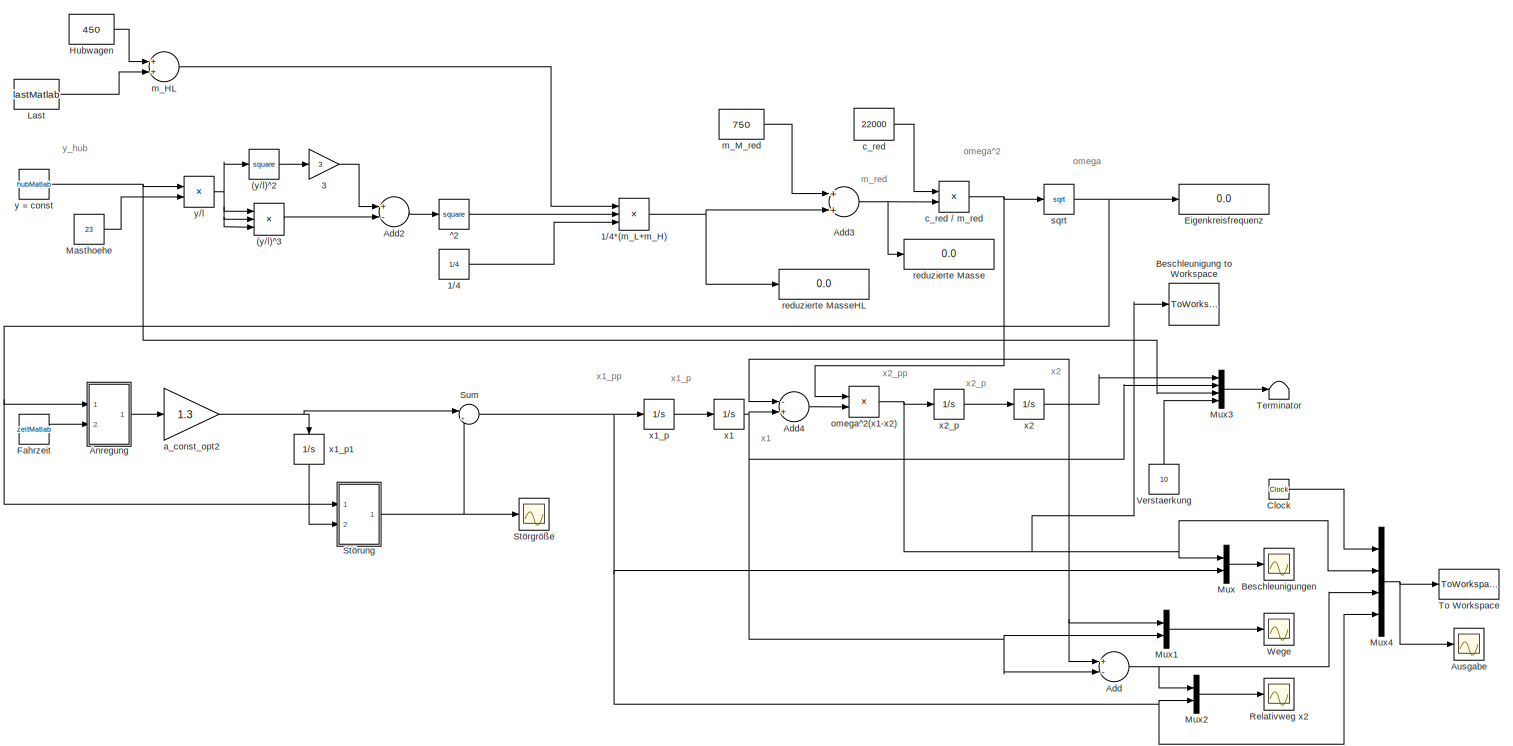
[diagram: root canvas - part 1/1, most of the canvas]
MODEL RBG_einMassenmodell_Versuchsplanung
KIND model
BLOCK [Math] (y//l)^2
  Operator = square
  Ports = [1, 1]
  SID = 1
BLOCK [Product] (y//l)^3
  InputSameDT = off
  Inputs = 3
  OutDataTypeStr = Inherit: Inherit via internal rule
  Ports = [3, 1]
  SID = 2
  SaturateOnIntegerOverflow = off
BLOCK [Constant] 1//4
  SID = 52
  Value = 1/4
BLOCK [Product] 1//4*(m_L+m_H)
  InputSameDT = off
  Inputs = 3
  OutDataTypeStr = Inherit: Inherit via internal rule
  Ports = [3, 1]
  SID = 48
  SaturateOnIntegerOverflow = off
BLOCK [Gain] 3
  Gain = 3
  OutDataTypeStr = Inherit: Inherit via internal rule
  ParamDataTypeStr = Inherit: Inherit via internal rule
  SID = 5
  SaturateOnIntegerOverflow = off
BLOCK [Sum] Add
  InputSameDT = off
  Inputs = +-
  OutDataTypeStr = Inherit: Inherit via internal rule
  Ports = [2, 1]
  SID = 6
  SaturateOnIntegerOverflow = off
BLOCK [Sum] Add2
  InputSameDT = off
  Inputs = +-
  OutDataTypeStr = Inherit: Inherit via internal rule
  Ports = [2, 1]
  SID = 8
  SaturateOnIntegerOverflow = off
BLOCK [Sum] Add3
  InputSameDT = off
  OutDataTypeStr = Inherit: Inherit via internal rule
  Ports = [2, 1]
  SID = 9
  SaturateOnIntegerOverflow = off
BLOCK [Sum] Add4
  InputSameDT = off
  Inputs = -+
  OutDataTypeStr = Inherit: Inherit via internal rule
  Ports = [2, 1]
  SID = 10
  SaturateOnIntegerOverflow = off
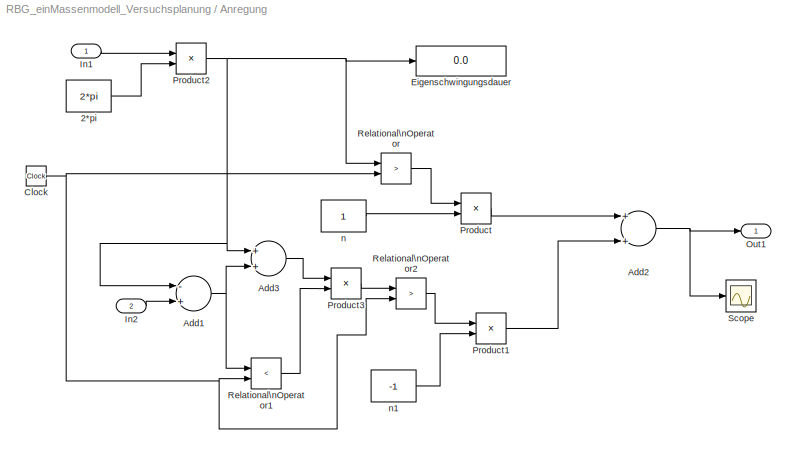
BLOCK [SubSystem] Anregung
  Ports = [2, 1]
  RequestExecContextInheritance = off
  SID = 77
  Variant = off
BLOCK [Constant] Anregung/2*pi
  SID = 4
  Value = 2*pi
BLOCK [Sum] Anregung/Add1
  InputSameDT = off
  Inputs = -+
  OutDataTypeStr = Inherit: Inherit via internal rule
  Ports = [2, 1]
  SID = 218
  SaturateOnIntegerOverflow = off
BLOCK [Sum] Anregung/Add2
  InputSameDT = off
  OutDataTypeStr = Inherit: Inherit via internal rule
  Ports = [2, 1]
  SID = 204
  SaturateOnIntegerOverflow = off
BLOCK [Sum] Anregung/Add3
  InputSameDT = off
  OutDataTypeStr = Inherit: Inherit via internal rule
  Ports = [2, 1]
  SID = 208
  SaturateOnIntegerOverflow = off
BLOCK [Clock] Anregung/Clock
  SID = 12
BLOCK [Display] Anregung/Eigenschwingungsdauer
  Decimation = 1
  Ports = [1]
  SID = 14
BLOCK [Inport] Anregung/In1
  IconDisplay = Port number
  SID = 79
BLOCK [Inport] Anregung/In2
  IconDisplay = Port number
  Port = 2
  SID = 216
BLOCK [Outport] Anregung/Out1
  IconDisplay = Port number
  SID = 78
BLOCK [Product] Anregung/Product
  InputSameDT = off
  OutDataTypeStr = Inherit: Inherit via internal rule
  Ports = [2, 1]
  SID = 20
  SaturateOnIntegerOverflow = off
BLOCK [Product] Anregung/Product1
  InputSameDT = off
  OutDataTypeStr = Inherit: Inherit via internal rule
  Ports = [2, 1]
  SID = 205
  SaturateOnIntegerOverflow = off
BLOCK [Product] Anregung/Product2
  InputSameDT = off
  Inputs = /*
  OutDataTypeStr = Inherit: Inherit via internal rule
  Ports = [2, 1]
  SID = 21
  SaturateOnIntegerOverflow = off
BLOCK [Product] Anregung/Product3
  InputSameDT = off
  OutDataTypeStr = Inherit: Inherit via internal rule
  Ports = [2, 1]
  SID = 212
  SaturateOnIntegerOverflow = off
BLOCK [RelationalOperator] Anregung/Relational\nOperator
  InputSameDT = off
  Operator = >
  Ports = [2, 1]
  SID = 22
BLOCK [RelationalOperator] Anregung/Relational\nOperator1
  InputSameDT = off
  Operator = <
  Ports = [2, 1]
  SID = 203
BLOCK [RelationalOperator] Anregung/Relational\nOperator2
  InputSameDT = off
  Operator = >
  Ports = [2, 1]
  SID = 209
BLOCK [Scope] Anregung/Scope
  NumInputPorts = 1
  Ports = [1]
  SID = 198
  ScopeSpecificationString = C++SS(StrPVP('Location','[188, 170, 1185, 629]'),StrPVP('Open','off'),MxPVP('AxesTitles',53,'struct(''axes1'',''%<SignalLabel>'')'),MxPVP('ScopeGraphics',56,'struct(''FigureColor'',''[0.5 0.5 0.5]'',''AxesColor'',''[0 0 0]'',''AxesTickColor'',''[1 1 1]'',''LineColors'',''[1 1 0;1 0 1;0 1 1;1 0 0;0 1 0;0 0 1]'',''LineStyles'',''-|-|-|-|-|-'',''LineWidths'',''[0.5 0.5 0.5 0.5 0.5 0.5]'',''MarkerStyl...<+273ch>
BLOCK [Constant] Anregung/n
  SID = 33
BLOCK [Constant] Anregung/n1
  SID = 206
  Value = -1
BLOCK [Scope] Ausgabe
  NumInputPorts = 1
  Ports = [1]
  SID = 112
  ScopeSpecificationString = C++SS(StrPVP('Location','[-1645, 66, -552, 627]'),StrPVP('Open','off'),MxPVP('AxesTitles',53,'struct(''axes1'',''%<SignalLabel>'')'),MxPVP('ScopeGraphics',56,'struct(''FigureColor'',''[0.5 0.5 0.5]'',''AxesColor'',''[0 0 0]'',''AxesTickColor'',''[1 1 1]'',''LineColors'',''[1 1 0;1 0 1;0 1 1;1 0 0;0 1 0;0 0 1]'',''LineStyles'',''-|-|-|-|-|-'',''LineWidths'',''[0.5 0.5 0.5 0.5 0.5 0.5]'',''MarkerSty...<+314ch>
BLOCK [ToWorkspace] Beschleunigung to Workspace
  MaxDataPoints = inf
  Ports = [1]
  SID = 223
  SampleTime = -1
  Save2DSignal = 2-D array (concatenate along first dimension)
  VariableName = a_2
BLOCK [Scope] Beschleunigungen
  NumInputPorts = 1
  Ports = [1]
  SID = 11
  ScopeSpecificationString = C++SS(StrPVP('Location','[-1600, 69, -320, 790]'),StrPVP('Open','off'),MxPVP('AxesTitles',53,'struct(''axes1'',''%<SignalLabel>'')'),MxPVP('ScopeGraphics',56,'struct(''FigureColor'',''[0.5 0.5 0.5]'',''AxesColor'',''[0 0 0]'',''AxesTickColor'',''[1 1 1]'',''LineColors'',''[1 1 0;1 0 1;0 1 1;1 0 0;0 1 0;0 0 1]'',''LineStyles'',''-|-|-|-|-|-'',''LineWidths'',''[0.5 0.5 0.5 0.5 0.5 0.5]'',''MarkerSty...<+317ch>
BLOCK [Clock] Clock
  SID = 106
BLOCK [Display] Eigenkreisfrequenz
  Decimation = 1
  Ports = [1]
  SID = 13
BLOCK [Constant] Fahrzeit
  SID = 217
  Value = zeitMatlab
BLOCK [Constant] Hubwagen
  SID = 50
  Value = 450
BLOCK [Constant] Last
  SID = 51
  Value = lastMatlab
BLOCK [Constant] Masthoehe
  SID = 15
  Value = 23
BLOCK [Mux] Mux
  DisplayOption = bar
  Inputs = 2
  Ports = [2, 1]
  SID = 16
BLOCK [Mux] Mux1
  DisplayOption = bar
  Inputs = 2
  Ports = [2, 1]
  SID = 17
BLOCK [Mux] Mux2
  DisplayOption = bar
  Inputs = 2
  Ports = [2, 1]
  SID = 18
BLOCK [Mux] Mux3
  DisplayOption = bar
  Ports = [4, 1]
  SID = 19
BLOCK [Mux] Mux4
  DisplayOption = bar
  Ports = [4, 1]
  SID = 109
BLOCK [Scope] Relativweg x2
  NumInputPorts = 1
  Ports = [1]
  SID = 23
  ScopeSpecificationString = C++SS(StrPVP('Location','[583, 409, 1247, 794]'),StrPVP('Open','off'),MxPVP('AxesTitles',53,'struct(''axes1'',''%<SignalLabel>'')'),MxPVP('ScopeGraphics',56,'struct(''FigureColor'',''[0.5 0.5 0.5]'',''AxesColor'',''[0 0 0]'',''AxesTickColor'',''[1 1 1]'',''LineColors'',''[1 1 0;1 0 1;0 1 1;1 0 0;0 1 0;0 0 1]'',''LineStyles'',''-|-|-|-|-|-'',''LineWidths'',''[0.5 0.5 0.5 0.5 0.5 0.5]'',''MarkerStyl...<+336ch>
BLOCK [Scope] Störgröße
  NumInputPorts = 1
  Ports = [1]
  SID = 64
  ScopeSpecificationString = C++SS(StrPVP('Location','[-1515, 151, -851, 469]'),StrPVP('Open','off'),MxPVP('AxesTitles',53,'struct(''axes1'',''%<SignalLabel>'')'),MxPVP('ScopeGraphics',56,'struct(''FigureColor'',''[0.5 0.5 0.5]'',''AxesColor'',''[0 0 0]'',''AxesTickColor'',''[1 1 1]'',''LineColors'',''[1 1 0;1 0 1;0 1 1;1 0 0;0 1 0;0 0 1]'',''LineStyles'',''-|-|-|-|-|-'',''LineWidths'',''[0.5 0.5 0.5 0.5 0.5 0.5]'',''MarkerSt...<+358ch>
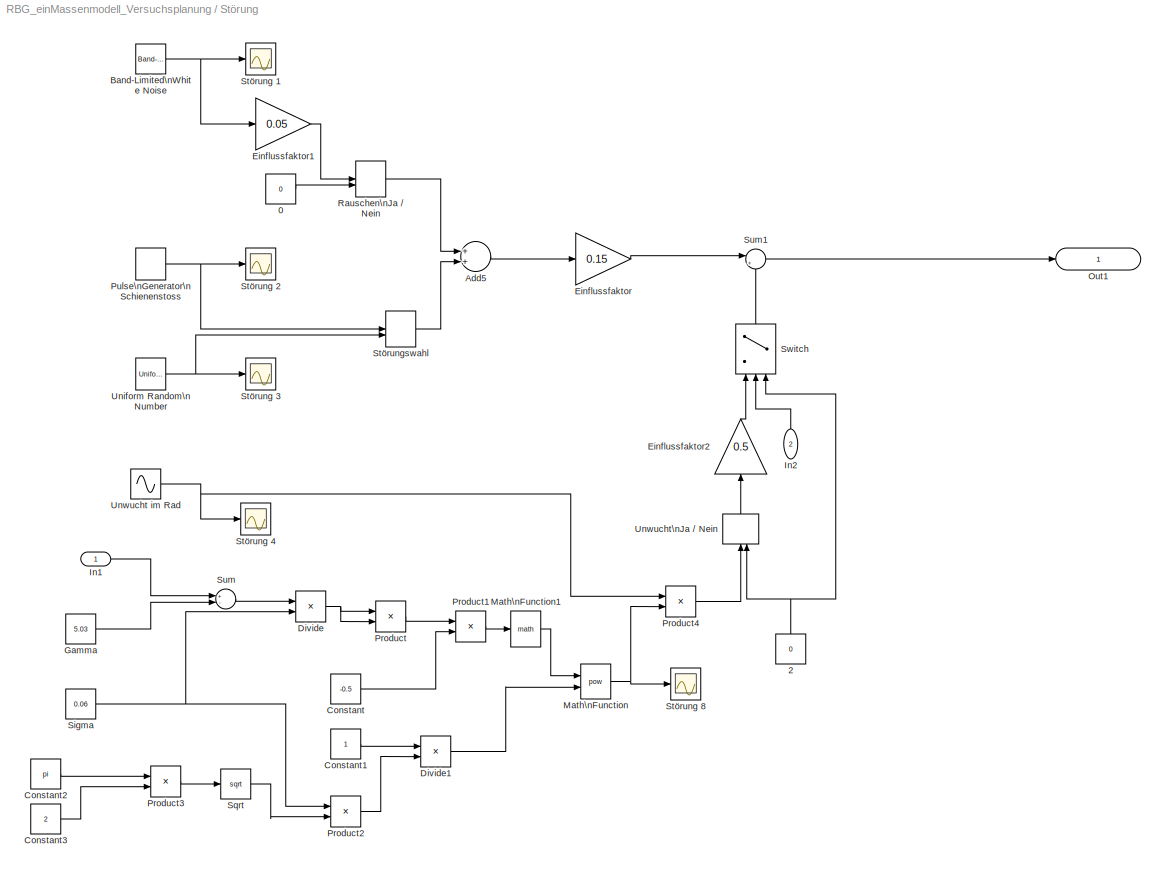
BLOCK [SubSystem] Störung
  Ports = [2, 1]
  RequestExecContextInheritance = off
  SID = 71
  Variant = off
BLOCK [Constant] Störung/0
  SID = 158
  Value = 0
BLOCK [Constant] Störung/2
  SID = 159
  Value = 0
BLOCK [Sum] Störung/Add5
  InputSameDT = off
  OutDataTypeStr = Inherit: Inherit via internal rule
  Ports = [2, 1]
  SID = 160
  SaturateOnIntegerOverflow = off
BLOCK [Reference] Störung/Band-Limited\nWhite Noise  REF=simulink/Sources/Band-Limited\nWhite Noise
  Cov = [0.1]
  Ports = [0, 1]
  SID = 161
  SourceBlock = simulink/Sources/Band-Limited\nWhite Noise
  SourceProductBaseCode = SL
  SourceProductName = Simulink
  SourceType = Band-Limited White Noise.
  Ts = 0.1
  VectorParams1D = on
  seed = [23341]
BLOCK [Constant] Störung/Constant
  SID = 162
  Value = -0.5
BLOCK [Constant] Störung/Constant1
  SID = 163
BLOCK [Constant] Störung/Constant2
  SID = 164
  Value = pi
BLOCK [Constant] Störung/Constant3
  SID = 165
  Value = 2
BLOCK [Product] Störung/Divide
  InputSameDT = off
  Inputs = */
  OutDataTypeStr = Inherit: Inherit via internal rule
  Ports = [2, 1]
  RndMeth = Floor
  SID = 166
  SaturateOnIntegerOverflow = off
BLOCK [Product] Störung/Divide1
  InputSameDT = off
  Inputs = */
  OutDataTypeStr = Inherit: Inherit via internal rule
  Ports = [2, 1]
  RndMeth = Floor
  SID = 167
  SaturateOnIntegerOverflow = off
BLOCK [Gain] Störung/Einflussfaktor
  Gain = 0.15
  OutDataTypeStr = Inherit: Inherit via internal rule
  ParamDataTypeStr = Inherit: Inherit via internal rule
  SID = 168
  SaturateOnIntegerOverflow = off
BLOCK [Gain] Störung/Einflussfaktor1
  Gain = 0.05
  OutDataTypeStr = Inherit: Inherit via internal rule
  ParamDataTypeStr = Inherit: Inherit via internal rule
  SID = 169
  SaturateOnIntegerOverflow = off
BLOCK [Gain] Störung/Einflussfaktor2
  Gain = 0.5
  OutDataTypeStr = Inherit: Inherit via internal rule
  ParamDataTypeStr = Inherit: Inherit via internal rule
  SID = 170
  SaturateOnIntegerOverflow = off
BLOCK [Constant] Störung/Gamma
  SID = 171
  Value = 5.03
BLOCK [Inport] Störung/In1
  IconDisplay = Port number
  SID = 156
BLOCK [Inport] Störung/In2
  IconDisplay = Port number
  Port = 2
  SID = 157
BLOCK [Math] Störung/Math\nFunction
  Operator = pow
  Ports = [2, 1]
  SID = 172
BLOCK [Math] Störung/Math\nFunction1
  Ports = [1, 1]
  SID = 173
BLOCK [Outport] Störung/Out1
  IconDisplay = Port number
  SID = 195
BLOCK [Product] Störung/Product
  InputSameDT = off
  OutDataTypeStr = Inherit: Inherit via internal rule
  Ports = [2, 1]
  SID = 174
  SaturateOnIntegerOverflow = off
BLOCK [Product] Störung/Product1
  InputSameDT = off
  OutDataTypeStr = Inherit: Inherit via internal rule
  Ports = [2, 1]
  SID = 175
  SaturateOnIntegerOverflow = off
BLOCK [Product] Störung/Product2
  InputSameDT = off
  OutDataTypeStr = Inherit: Inherit via internal rule
  Ports = [2, 1]
  SID = 176
  SaturateOnIntegerOverflow = off
BLOCK [Product] Störung/Product3
  InputSameDT = off
  OutDataTypeStr = Inherit: Inherit via internal rule
  Ports = [2, 1]
  SID = 177
  SaturateOnIntegerOverflow = off
BLOCK [Product] Störung/Product4
  InputSameDT = off
  OutDataTypeStr = Inherit: Inherit via internal rule
  Ports = [2, 1]
  SID = 178
  SaturateOnIntegerOverflow = off
BLOCK [DiscretePulseGenerator] Störung/Pulse\nGenerator\nSchienenstoss
  Amplitude = -1
  Period = 4
  Ports = [0, 1]
  PulseType = Time based
  SID = 179
BLOCK [ManualSwitch] Störung/Rauschen\nJa // Nein
  SID = 219
BLOCK [Constant] Störung/Sigma
  SID = 181
  Value = 0.06
BLOCK [Sqrt] Störung/Sqrt
  SID = 182
BLOCK [Scope] Störung/Störung 1
  NumInputPorts = 1
  Ports = [1]
  SID = 183
  ScopeSpecificationString = C++SS(StrPVP('Location','[155, 200, 1141, 889]'),StrPVP('Open','off'),MxPVP('AxesTitles',53,'struct(''axes1'',''%<SignalLabel>'')'),MxPVP('ScopeGraphics',56,'struct(''FigureColor'',''[0.5 0.5 0.5]'',''AxesColor'',''[0 0 0]'',''AxesTickColor'',''[1 1 1]'',''LineColors'',''[1 1 0;1 0 1;0 1 1;1 0 0;0 1 0;0 0 1]'',''LineStyles'',''-|-|-|-|-|-'',''LineWidths'',''[0.5 0.5 0.5 0.5 0.5 0.5]'',''MarkerStyl...<+316ch>
BLOCK [Scope] Störung/Störung 2
  NumInputPorts = 1
  Ports = [1]
  SID = 184
  ScopeSpecificationString = C++SS(StrPVP('Location','[359, 141, 1345, 830]'),StrPVP('Open','off'),MxPVP('AxesTitles',53,'struct(''axes1'',''%<SignalLabel>'')'),MxPVP('ScopeGraphics',56,'struct(''FigureColor'',''[0.5 0.5 0.5]'',''AxesColor'',''[0 0 0]'',''AxesTickColor'',''[1 1 1]'',''LineColors'',''[1 1 0;1 0 1;0 1 1;1 0 0;0 1 0;0 0 1]'',''LineStyles'',''-|-|-|-|-|-'',''LineWidths'',''[0.5 0.5 0.5 0.5 0.5 0.5]'',''MarkerStyl...<+313ch>
BLOCK [Scope] Störung/Störung 3
  NumInputPorts = 1
  Ports = [1]
  SID = 185
  ScopeSpecificationString = C++SS(StrPVP('Location','[359, 141, 1345, 830]'),StrPVP('Open','off'),MxPVP('AxesTitles',53,'struct(''axes1'',''%<SignalLabel>'')'),MxPVP('ScopeGraphics',56,'struct(''FigureColor'',''[0.5 0.5 0.5]'',''AxesColor'',''[0 0 0]'',''AxesTickColor'',''[1 1 1]'',''LineColors'',''[1 1 0;1 0 1;0 1 1;1 0 0;0 1 0;0 0 1]'',''LineStyles'',''-|-|-|-|-|-'',''LineWidths'',''[0.5 0.5 0.5 0.5 0.5 0.5]'',''MarkerStyl...<+313ch>
BLOCK [Scope] Störung/Störung 4
  NumInputPorts = 1
  Ports = [1]
  SID = 186
  ScopeSpecificationString = C++SS(StrPVP('Location','[-1860, 85, -215, 774]'),StrPVP('Open','off'),StrPVP('ZoomMode','xonly'),MxPVP('AxesTitles',53,'struct(''axes1'',''%<SignalLabel>'')'),MxPVP('ScopeGraphics',56,'struct(''FigureColor'',''[0.5 0.5 0.5]'',''AxesColor'',''[0 0 0]'',''AxesTickColor'',''[1 1 1]'',''LineColors'',''[1 1 0;1 0 1;0 1 1;1 0 0;0 1 0;0 0 1]'',''LineStyles'',''-|-|-|-|-|-'',''LineWidths'',''[0.5 0.5 0.5...<+341ch>
BLOCK [Scope] Störung/Störung 8
  NumInputPorts = 1
  Ports = [1]
  SID = 187
  ScopeSpecificationString = C++SS(StrPVP('Location','[87, 157, 1247, 705]'),StrPVP('Open','off'),StrPVP('ZoomMode','yonly'),MxPVP('AxesTitles',53,'struct(''axes1'',''%<SignalLabel>'')'),MxPVP('ScopeGraphics',56,'struct(''FigureColor'',''[0.5 0.5 0.5]'',''AxesColor'',''[0 0 0]'',''AxesTickColor'',''[1 1 1]'',''LineColors'',''[1 1 0;1 0 1;0 1 1;1 0 0;0 1 0;0 0 1]'',''LineStyles'',''-|-|-|-|-|-'',''LineWidths'',''[0.5 0.5 0.5 0...<+350ch>
BLOCK [ManualSwitch] Störung/Störungswahl
  SID = 220
BLOCK [Sum] Störung/Sum
  InputSameDT = off
  Inputs = +-
  OutDataTypeStr = Inherit: Inherit via internal rule
  Ports = [2, 1]
  SID = 189
  SaturateOnIntegerOverflow = off
BLOCK [Sum] Störung/Sum1
  IconShape = round
  InputSameDT = off
  Inputs = |++
  OutDataTypeStr = Inherit: Inherit via internal rule
  Ports = [2, 1]
  SID = 190
  SaturateOnIntegerOverflow = off
BLOCK [Switch] Störung/Switch
  Criteria = u2 > Threshold
  InputSameDT = off
  SID = 191
  SaturateOnIntegerOverflow = off
  Threshold = 0.001
BLOCK [UniformRandomNumber] Störung/Uniform Random\nNumber
  SID = 192
  SampleTime = 1
BLOCK [Sin] Störung/Unwucht im Rad
  Frequency = 5
  Ports = [0, 1]
  SID = 194
  SampleTime = 0
BLOCK [ManualSwitch] Störung/Unwucht\nJa // Nein
  SID = 222
BLOCK [Sum] Sum
  IconShape = round
  InputSameDT = off
  Inputs = |++
  OutDataTypeStr = Inherit: Inherit via internal rule
  Ports = [2, 1]
  SID = 66
  SaturateOnIntegerOverflow = off
BLOCK [Terminator] Terminator
  SID = 202
BLOCK [ToWorkspace] To Workspace
  MaxDataPoints = inf
  Ports = [1]
  SID = 108
  SampleTime = -1
  VariableName = y
BLOCK [Constant] Verstaerkung
  SID = 25
  Value = 10
BLOCK [Scope] Wege
  NumInputPorts = 1
  Ports = [1]
  SID = 26
  ScopeSpecificationString = C++SS(StrPVP('Location','[-1661, 94, -438, 819]'),StrPVP('Open','off'),MxPVP('AxesTitles',53,'struct(''axes1'',''%<SignalLabel>'')'),MxPVP('ScopeGraphics',56,'struct(''FigureColor'',''[0.5 0.5 0.5]'',''AxesColor'',''[0 0 0]'',''AxesTickColor'',''[1 1 1]'',''LineColors'',''[1 1 0;1 0 1;0 1 1;1 0 0;0 1 0;0 0 1]'',''LineStyles'',''-|-|-|-|-|-'',''LineWidths'',''[0.5 0.5 0.5 0.5 0.5 0.5]'',''MarkerSty...<+280ch>
BLOCK [Math] ^2
  Operator = square
  Ports = [1, 1]
  SID = 27
BLOCK [Gain] a_const_opt2
  Gain = 1.3
  OutDataTypeStr = Inherit: Inherit via internal rule
  ParamDataTypeStr = Inherit: Inherit via internal rule
  SID = 121
  SaturateOnIntegerOverflow = off
BLOCK [Constant] c_red
  SID = 29
  Value = 22000
BLOCK [Product] c_red // m_red
  InputSameDT = off
  Inputs = */
  OutDataTypeStr = Inherit: Inherit via internal rule
  Ports = [2, 1]
  SID = 30
  SaturateOnIntegerOverflow = off
BLOCK [Sum] m_HL
  InputSameDT = off
  OutDataTypeStr = Inherit: Inherit via internal rule
  Ports = [2, 1]
  SID = 49
  SaturateOnIntegerOverflow = off
BLOCK [Constant] m_M_red
  SID = 32
  Value = 750
BLOCK [Product] omega^2(x1-x2)
  InputSameDT = off
  OutDataTypeStr = Inherit: Inherit via internal rule
  Ports = [2, 1]
  SID = 34
  SaturateOnIntegerOverflow = off
BLOCK [Display] reduzierte Masse
  Decimation = 1
  Ports = [1]
  SID = 197
BLOCK [Display] reduzierte MasseHL
  Decimation = 1
  Ports = [1]
  SID = 35
BLOCK [Math] sqrt
  Operator = sqrt
  Ports = [1, 1]
  SID = 36
BLOCK [Integrator] x1
  Ports = [1, 1]
  SID = 41
BLOCK [Integrator] x1_p
  Ports = [1, 1]
  SID = 42
BLOCK [Integrator] x1_p1
  Ports = [1, 1]
  SID = 196
BLOCK [Integrator] x2
  Ports = [1, 1]
  SID = 43
BLOCK [Integrator] x2_p
  Ports = [1, 1]
  SID = 44
BLOCK [Constant] y = const
  SID = 45
  Value = hubMatlab
BLOCK [Product] y//l
  InputSameDT = off
  Inputs = */
  OutDataTypeStr = Inherit: Inherit via internal rule
  Ports = [2, 1]
  SID = 46
  SaturateOnIntegerOverflow = off
ANNOTATION (root): m_red
ANNOTATION (root): omega
ANNOTATION (root): omega^2
ANNOTATION (root): x1
ANNOTATION (root): x1_p
ANNOTATION (root): x1_pp
ANNOTATION (root): x2
ANNOTATION (root): x2_p
ANNOTATION (root): x2_pp
ANNOTATION (root): y_hub
LINE (y//l)^2:1 -> 3:1
LINE (y//l)^3:1 -> Add2:2
NET 1//4*(m_L+m_H):1 -> Add3:2, reduzierte MasseHL:1
LINE 1//4:1 -> 1//4*(m_L+m_H):3
LINE 3:1 -> Add2:1
LINE Add2:1 -> ^2:1
NET Add3:1 -> c_red // m_red:2, reduzierte Masse:1
LINE Add4:1 -> omega^2(x1-x2):2
NET Add:1 -> Mux2:1, Mux4:3
LINE Anregung/2*pi:1 -> Anregung/Product2:2
NET Anregung/Add1:1 -> Anregung/Add3:2, Anregung/Relational\nOperator1:1
NET Anregung/Add2:1 -> Anregung/Out1:1, Anregung/Scope:1
LINE Anregung/Add3:1 -> Anregung/Product3:1
NET Anregung/Clock:1 -> Anregung/Relational\nOperator1:2, Anregung/Relational\nOperator2:2, Anregung/Relational\nOperator:2
LINE Anregung/In1:1 -> Anregung/Product2:1
LINE Anregung/In2:1 -> Anregung/Add1:2
LINE Anregung/Product1:1 -> Anregung/Add2:2
NET Anregung/Product2:1 -> Anregung/Add1:1, Anregung/Add3:1, Anregung/Eigenschwingungsdauer:1, Anregung/Relational\nOperator:1
LINE Anregung/Product3:1 -> Anregung/Relational\nOperator2:1
LINE Anregung/Product:1 -> Anregung/Add2:1
LINE Anregung/Relational\nOperator1:1 -> Anregung/Product3:2
LINE Anregung/Relational\nOperator2:1 -> Anregung/Product1:1
LINE Anregung/Relational\nOperator:1 -> Anregung/Product:1
LINE Anregung/n1:1 -> Anregung/Product1:2
LINE Anregung/n:1 -> Anregung/Product:2
LINE Anregung:1 -> a_const_opt2:1
LINE Clock:1 -> Mux4:1
LINE Fahrzeit:1 -> Anregung:2
LINE Hubwagen:1 -> m_HL:1
LINE Last:1 -> m_HL:2
LINE Masthoehe:1 -> y//l:2
LINE Mux1:1 -> Wege:1
LINE Mux2:1 -> Relativweg x2:1
LINE Mux3:1 -> Terminator:1
NET Mux4:1 -> Ausgabe:1, To Workspace:1
LINE Mux:1 -> Beschleunigungen:1
LINE Störung/0:1 -> Störung/Rauschen\nJa // Nein:2
NET Störung/2:1 -> Störung/Switch:3, Störung/Unwucht\nJa // Nein:2
LINE Störung/Add5:1 -> Störung/Einflussfaktor:1
NET Störung/Band-Limited\nWhite Noise:1 -> Störung/Einflussfaktor1:1, Störung/Störung 1:1
LINE Störung/Constant1:1 -> Störung/Divide1:1
LINE Störung/Constant2:1 -> Störung/Product3:1
LINE Störung/Constant3:1 -> Störung/Product3:2
LINE Störung/Constant:1 -> Störung/Product1:2
LINE Störung/Divide1:1 -> Störung/Math\nFunction:2
NET Störung/Divide:1 -> Störung/Product:1, Störung/Product:2
LINE Störung/Einflussfaktor1:1 -> Störung/Rauschen\nJa // Nein:1
LINE Störung/Einflussfaktor2:1 -> Störung/Switch:1
LINE Störung/Einflussfaktor:1 -> Störung/Sum1:1
LINE Störung/Gamma:1 -> Störung/Sum:2
LINE Störung/In1:1 -> Störung/Sum:1
LINE Störung/In2:1 -> Störung/Switch:2
LINE Störung/Math\nFunction1:1 -> Störung/Math\nFunction:1
NET Störung/Math\nFunction:1 -> Störung/Product4:2, Störung/Störung 8:1
LINE Störung/Product1:1 -> Störung/Math\nFunction1:1
LINE Störung/Product2:1 -> Störung/Divide1:2
LINE Störung/Product3:1 -> Störung/Sqrt:1
LINE Störung/Product4:1 -> Störung/Unwucht\nJa // Nein:1
LINE Störung/Product:1 -> Störung/Product1:1
NET Störung/Pulse\nGenerator\nSchienenstoss:1 -> Störung/Störung 2:1, Störung/Störungswahl:1
LINE Störung/Rauschen\nJa // Nein:1 -> Störung/Add5:1
NET Störung/Sigma:1 -> Störung/Divide:2, Störung/Product2:1
LINE Störung/Sqrt:1 -> Störung/Product2:2
LINE Störung/Störungswahl:1 -> Störung/Add5:2
LINE Störung/Sum1:1 -> Störung/Out1:1
LINE Störung/Sum:1 -> Störung/Divide:1
LINE Störung/Switch:1 -> Störung/Sum1:2
NET Störung/Uniform Random\nNumber:1 -> Störung/Störung 3:1, Störung/Störungswahl:2
NET Störung/Unwucht im Rad:1 -> Störung/Product4:1, Störung/Störung 4:1
LINE Störung/Unwucht\nJa // Nein:1 -> Störung/Einflussfaktor2:1
NET Störung:1 -> Störgröße:1, Sum:2
NET Sum:1 -> Mux2:2, Mux4:4, Mux:2, x1_p:1
LINE Verstaerkung:1 -> Mux3:4
LINE ^2:1 -> 1//4*(m_L+m_H):2
NET a_const_opt2:1 -> Sum:1, x1_p1:1
NET c_red // m_red:1 -> omega^2(x1-x2):1, sqrt:1
LINE c_red:1 -> c_red // m_red:1
LINE m_HL:1 -> 1//4*(m_L+m_H):1
LINE m_M_red:1 -> Add3:1
NET omega^2(x1-x2):1 -> Beschleunigung to Workspace:1, Mux4:2, Mux:1, x2_p:1
NET sqrt:1 -> Anregung:1, Eigenkreisfrequenz:1, Störung:1
NET x1:1 -> Add4:2, Add:2, Mux1:2, Mux3:2
LINE x1_p1:1 -> Störung:2
LINE x1_p:1 -> x1:1
NET x2:1 -> Add4:1, Add:1, Mux1:1, Mux3:1
LINE x2_p:1 -> x2:1
NET y = const:1 -> Mux3:3, y//l:1
NET y//l:1 -> (y//l)^2:1, (y//l)^3:1, (y//l)^3:2, (y//l)^3:3
note: NET lines group one-source signal fan-out (src -> all destinations, sorted); 1:1 wires keep LINE
